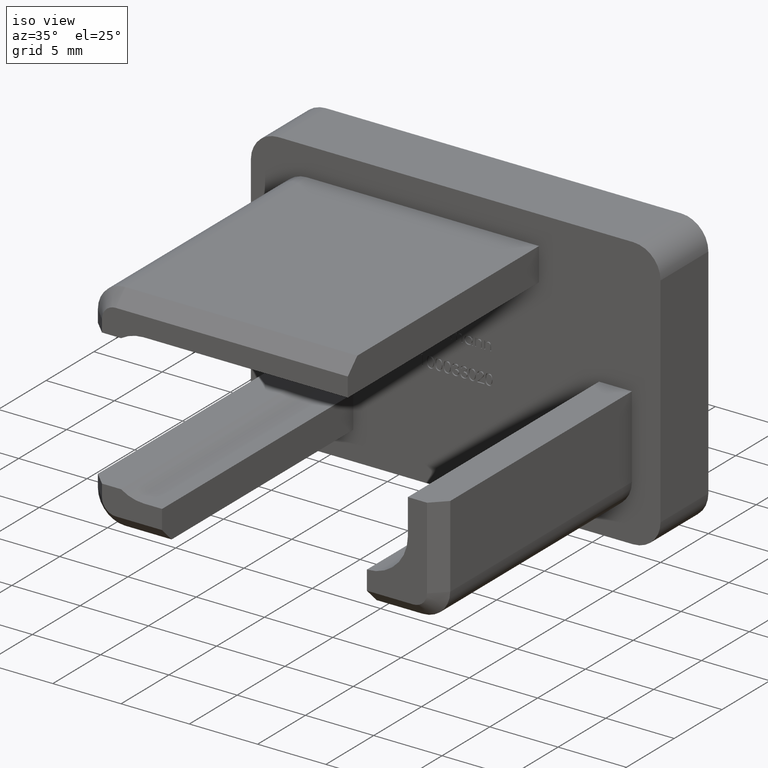
[diagram: clean part render]
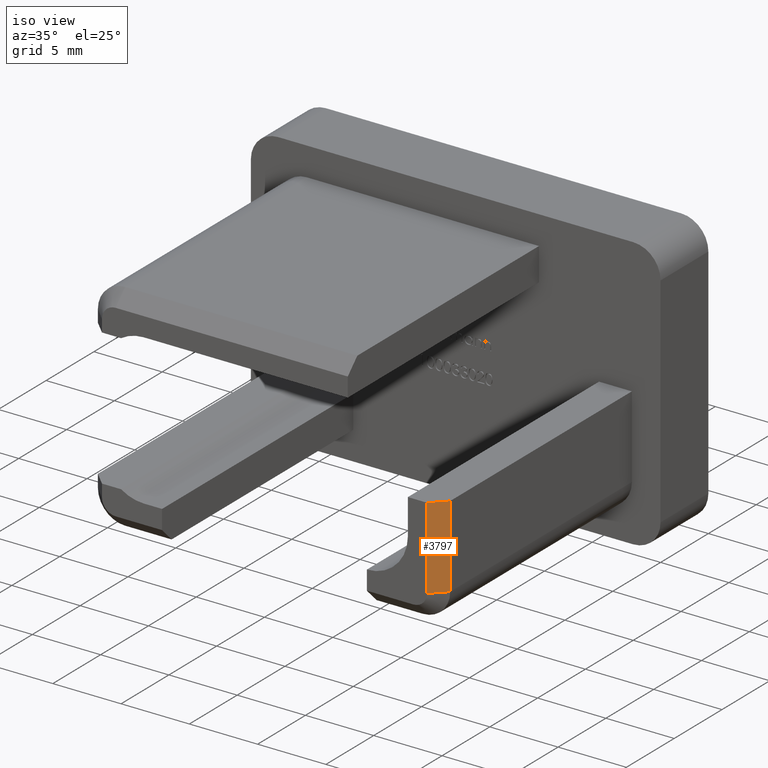
[diagram: same view with one face highlighted and labeled with its STEP entity id]
A machine part, iso view. The second image highlights one B-rep face of the part: STEP entity #3797.
In plain terms, the highlighted planar face has unit normal (-0.7071, 0.7071, 0).
Its self-contained STEP definition (entity closure, byte-faithful):
#65 = EDGE_CURVE ( 'NONE', #8972, #3057, #9520, .T. ) ;
#759 = ORIENTED_EDGE ( 'NONE', *, *, #3564, .F. ) ;
#1680 = CARTESIAN_POINT ( 'NONE',  ( 11.89999999999999500, -20.00000000000000000, -5.899999999999996800 ) ) ;
#2123 = CARTESIAN_POINT ( 'NONE',  ( 12.90000000000000400, -18.99999999999998900, 0.1000000000000028600 ) ) ;
#2156 = AXIS2_PLACEMENT_3D ( 'NONE', #3581, #13286, #14569 ) ;
#2512 = ORIENTED_EDGE ( 'NONE', *, *, #65, .F. ) ;
#3057 = VERTEX_POINT ( 'NONE', #5406 ) ;
#3564 = EDGE_CURVE ( 'NONE', #3057, #11137, #14033, .T. ) ;
#3581 = CARTESIAN_POINT ( 'NONE',  ( 11.89999999999999500, -20.00000000000000000, 0.0000000000000000000 ) ) ;
#3797 = ADVANCED_FACE ( 'NONE', ( #13250 ), #9587, .F. ) ;
#3832 = ORIENTED_EDGE ( 'NONE', *, *, #12006, .F. ) ;
#4392 = VECTOR ( 'NONE', #13699, 1000.000000000000000 ) ;
#5406 = CARTESIAN_POINT ( 'NONE',  ( 11.89999999999999500, -20.00000000000000000, 0.1000000000000028600 ) ) ;
#6727 = CARTESIAN_POINT ( 'NONE',  ( 11.89999999999999500, -20.00000000000000000, -5.899999999999996800 ) ) ;
#7407 = EDGE_CURVE ( 'NONE', #8972, #9672, #12843, .T. ) ;
#7556 = CARTESIAN_POINT ( 'NONE',  ( 12.90000000000000400, -18.99999999999998900, -5.899999999999996800 ) ) ;
#8690 = CARTESIAN_POINT ( 'NONE',  ( 11.89999999999999500, -20.00000000000000000, 0.0000000000000000000 ) ) ;
#8972 = VERTEX_POINT ( 'NONE', #6727 ) ;
#9104 = EDGE_LOOP ( 'NONE', ( #12007, #3832, #759, #2512 ) ) ;
#9382 = LINE ( 'NONE', #2123, #9567 ) ;
#9520 = LINE ( 'NONE', #8690, #4392 ) ;
#9567 = VECTOR ( 'NONE', #11845, 1000.000000000000000 ) ;
#9587 = PLANE ( 'NONE',  #2156 ) ;
#9629 = VECTOR ( 'NONE', #11432, 1000.000000000000000 ) ;
#9672 = VERTEX_POINT ( 'NONE', #7556 ) ;
#10038 = CARTESIAN_POINT ( 'NONE',  ( 11.89999999999999500, -20.00000000000000000, 0.1000000000000028600 ) ) ;
#10428 = VECTOR ( 'NONE', #14117, 1000.000000000000000 ) ;
#11137 = VERTEX_POINT ( 'NONE', #14313 ) ;
#11432 = DIRECTION ( 'NONE',  ( 0.7071067811865463500, 0.7071067811865487900, 0.0000000000000000000 ) ) ;
#11845 = DIRECTION ( 'NONE',  ( 0.0000000000000000000, 0.0000000000000000000, -1.000000000000000000 ) ) ;
#12006 = EDGE_CURVE ( 'NONE', #11137, #9672, #9382, .T. ) ;
#12007 = ORIENTED_EDGE ( 'NONE', *, *, #7407, .T. ) ;
#12843 = LINE ( 'NONE', #1680, #9629 ) ;
#13250 = FACE_OUTER_BOUND ( 'NONE', #9104, .T. ) ;
#13286 = DIRECTION ( 'NONE',  ( -0.7071067811865487900, 0.7071067811865462400, 0.0000000000000000000 ) ) ;
#13699 = DIRECTION ( 'NONE',  ( 0.0000000000000000000, 0.0000000000000000000, 1.000000000000000000 ) ) ;
#14033 = LINE ( 'NONE', #10038, #10428 ) ;
#14117 = DIRECTION ( 'NONE',  ( 0.7071067811865463500, 0.7071067811865487900, -0.0000000000000000000 ) ) ;
#14313 = CARTESIAN_POINT ( 'NONE',  ( 12.90000000000000400, -18.99999999999998900, 0.1000000000000028600 ) ) ;
#14569 = DIRECTION ( 'NONE',  ( 0.0000000000000000000, 0.0000000000000000000, 1.000000000000000000 ) ) ;